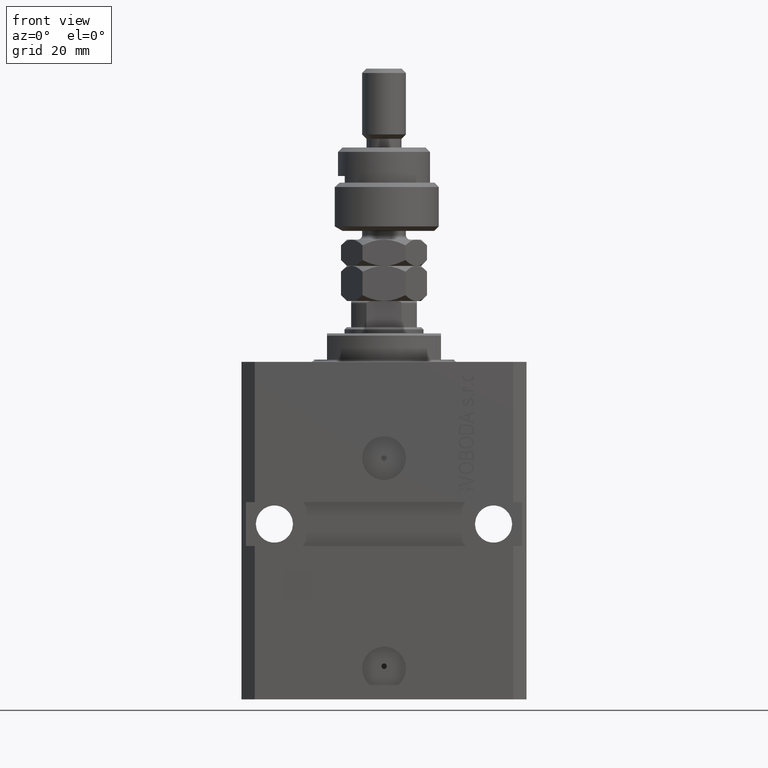
[diagram: clean part render]
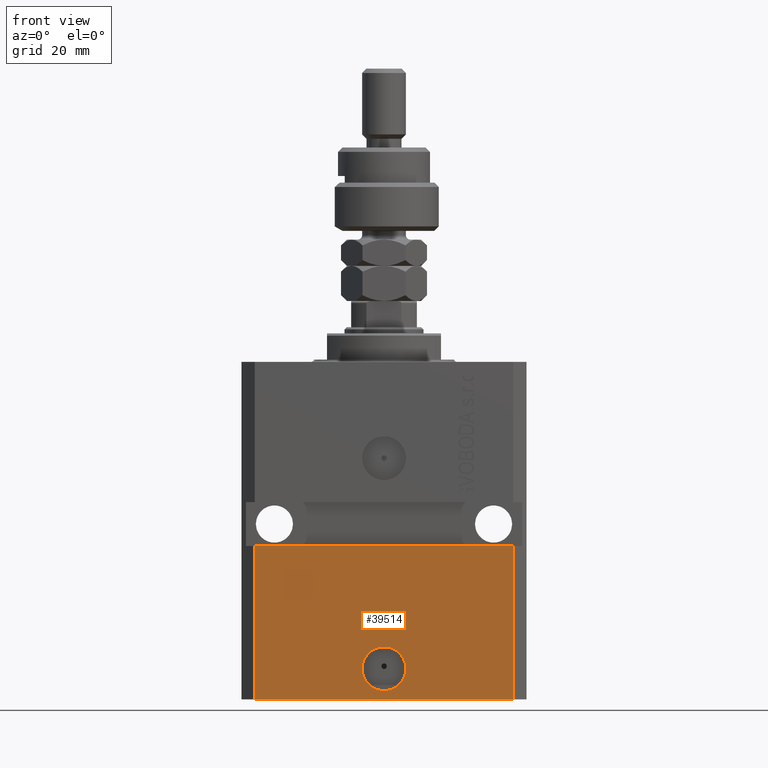
[diagram: same view with one face highlighted and labeled with its STEP entity id]
A machine part, front view. The second image highlights one B-rep face of the part: STEP entity #39514.
In plain terms, the highlighted planar face has unit normal (0, -1, 0).
Its self-contained STEP definition (entity closure, byte-faithful):
#34 = FACE_OUTER_BOUND ( 'NONE', #37109, .T. ) ;
#2248 = VERTEX_POINT ( 'NONE', #34766 ) ;
#2782 = CIRCLE ( 'NONE', #20525, 5.000000000000005329 ) ;
#3348 = VERTEX_POINT ( 'NONE', #37820 ) ;
#5159 = VERTEX_POINT ( 'NONE', #45532 ) ;
#6044 = ORIENTED_EDGE ( 'NONE', *, *, #47155, .F. ) ;
#8219 = CARTESIAN_POINT ( 'NONE',  ( 5.000000000000007994, -22.49999999999949551, -69.99999999999998579 ) ) ;
#8227 = VECTOR ( 'NONE', #20818, 1000.000000000000000 ) ;
#8233 = CARTESIAN_POINT ( 'NONE',  ( 29.49999999999650413, -22.49999999999949196, -77.00000000000000000 ) ) ;
#8285 = EDGE_CURVE ( 'NONE', #3348, #2248, #35755, .T. ) ;
#8462 = ORIENTED_EDGE ( 'NONE', *, *, #17476, .F. ) ;
#8507 = ORIENTED_EDGE ( 'NONE', *, *, #16974, .T. ) ;
#9518 = VERTEX_POINT ( 'NONE', #8219 ) ;
#11503 = CARTESIAN_POINT ( 'NONE',  ( 2.646188353185214061E-15, -22.49999999999949551, -69.99999999999998579 ) ) ;
#11865 = CARTESIAN_POINT ( 'NONE',  ( -29.49999999999650413, -22.49999999999949907, -77.00000000000000000 ) ) ;
#12511 = LINE ( 'NONE', #8233, #18686 ) ;
#16536 = CARTESIAN_POINT ( 'NONE',  ( -29.49999999999650413, -22.49999999999949907, -77.00000000000000000 ) ) ;
#16974 = EDGE_CURVE ( 'NONE', #2248, #18973, #12511, .T. ) ;
#17476 = EDGE_CURVE ( 'NONE', #3348, #5159, #43578, .T. ) ;
#18686 = VECTOR ( 'NONE', #23660, 1000.000000000000000 ) ;
#18973 = VERTEX_POINT ( 'NONE', #31558 ) ;
#20525 = AXIS2_PLACEMENT_3D ( 'NONE', #34104, #30301, #22724 ) ;
#20818 = DIRECTION ( 'NONE',  ( 0.000000000000000000, 0.000000000000000000, 1.000000000000000000 ) ) ;
#20821 = EDGE_CURVE ( 'NONE', #5159, #18973, #44621, .T. ) ;
#20950 = VECTOR ( 'NONE', #33195, 1000.000000000000000 ) ;
#22430 = ORIENTED_EDGE ( 'NONE', *, *, #20821, .F. ) ;
#22724 = DIRECTION ( 'NONE',  ( 1.000000000000000000, 0.000000000000000000, 0.000000000000000000 ) ) ;
#23517 = DIRECTION ( 'NONE',  ( 1.000000000000000000, 1.176083712526788232E-16, 0.000000000000000000 ) ) ;
#23660 = DIRECTION ( 'NONE',  ( 0.000000000000000000, 0.000000000000000000, 1.000000000000000000 ) ) ;
#26935 = DIRECTION ( 'NONE',  ( 1.176083712526788232E-16, -1.000000000000000000, 0.000000000000000000 ) ) ;
#26950 = EDGE_CURVE ( 'NONE', #41120, #9518, #48297, .T. ) ;
#28145 = CARTESIAN_POINT ( 'NONE',  ( -29.49999999999650413, -22.49999999999949907, -77.00000000000000000 ) ) ;
#30301 = DIRECTION ( 'NONE',  ( 1.176083712526788232E-16, -1.000000000000000000, 0.000000000000000000 ) ) ;
#31558 = CARTESIAN_POINT ( 'NONE',  ( 29.49999999999650058, -22.49999999999949196, -41.99999999999998579 ) ) ;
#33195 = DIRECTION ( 'NONE',  ( 1.000000000000000000, 1.176083712526788232E-16, 0.000000000000000000 ) ) ;
#33227 = CARTESIAN_POINT ( 'NONE',  ( -32.49999999999650413, -22.49999999999949907, -41.99999999999999289 ) ) ;
#34104 = CARTESIAN_POINT ( 'NONE',  ( 2.646188353185214061E-15, -22.49999999999949551, -69.99999999999998579 ) ) ;
#34636 = FACE_BOUND ( 'NONE', #48514, .T. ) ;
#34763 = DIRECTION ( 'NONE',  ( 1.000000000000000000, 0.000000000000000000, 0.000000000000000000 ) ) ;
#34766 = CARTESIAN_POINT ( 'NONE',  ( 29.49999999999650413, -22.49999999999949196, -77.00000000000000000 ) ) ;
#34892 = DIRECTION ( 'NONE',  ( 1.176083712526788232E-16, -1.000000000000000000, 0.000000000000000000 ) ) ;
#35755 = LINE ( 'NONE', #16536, #20950 ) ;
#37109 = EDGE_LOOP ( 'NONE', ( #22430, #8462, #48286, #8507 ) ) ;
#37264 = DIRECTION ( 'NONE',  ( 1.000000000000000000, 1.067522139062765303E-16, 1.067522139062765303E-16 ) ) ;
#37820 = CARTESIAN_POINT ( 'NONE',  ( -29.49999999999650413, -22.49999999999949907, -77.00000000000000000 ) ) ;
#39514 = ADVANCED_FACE ( 'NONE', ( #34636, #34 ), #45544, .T. ) ;
#41120 = VERTEX_POINT ( 'NONE', #43612 ) ;
#42823 = ORIENTED_EDGE ( 'NONE', *, *, #26950, .F. ) ;
#42963 = AXIS2_PLACEMENT_3D ( 'NONE', #11865, #34892, #23517 ) ;
#43578 = LINE ( 'NONE', #28145, #8227 ) ;
#43612 = CARTESIAN_POINT ( 'NONE',  ( -5.000000000000002665, -22.49999999999949551, -69.99999999999998579 ) ) ;
#44621 = LINE ( 'NONE', #33227, #47907 ) ;
#45532 = CARTESIAN_POINT ( 'NONE',  ( -29.49999999999650413, -22.49999999999949907, -41.99999999999999289 ) ) ;
#45544 = PLANE ( 'NONE',  #42963 ) ;
#47155 = EDGE_CURVE ( 'NONE', #9518, #41120, #2782, .T. ) ;
#47907 = VECTOR ( 'NONE', #37264, 1000.000000000000000 ) ;
#48286 = ORIENTED_EDGE ( 'NONE', *, *, #8285, .T. ) ;
#48297 = CIRCLE ( 'NONE', #49082, 5.000000000000005329 ) ;
#48514 = EDGE_LOOP ( 'NONE', ( #6044, #42823 ) ) ;
#49082 = AXIS2_PLACEMENT_3D ( 'NONE', #11503, #26935, #34763 ) ;